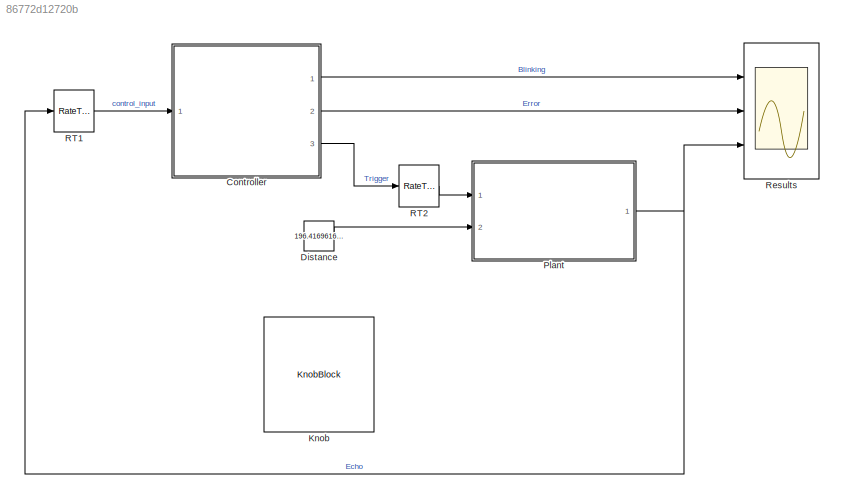
MODEL slx_86772d12720b
KIND model
CONFIG AbsTol = auto
CONFIG EnableMultiTasking = on
CONFIG FixedStep = auto
CONFIG MaxStep = auto
CONFIG MinStep = auto
CONFIG RelTol = 1e-3
CONFIG SampleTimeConstraint = Unconstrained
CONFIG SolverName = VariableStepAuto
CONFIG StartTime = 0.0
CONFIG StopTime = inf
BLOCK [ModelReference] Controller
  ModelNameDialog = feedback_control
  ModelReferenceVersion = 1.105
  Ports = [1, 3]
BLOCK [Constant] Distance
  OutDataTypeStr = double
  Value = 196.4169616699219
BLOCK [KnobBlock] Knob
  ScaleMax = 450
BLOCK [ModelReference] Plant
  ModelNameDialog = feedback_plant
  ModelReferenceVersion = 10.6
  Ports = [2, 1]
BLOCK [RateTransition] RT1
BLOCK [RateTransition] RT2
BLOCK [Scope] Results
  Floating = off
  NumInputPorts = 3
  Ports = [3]
  ScopeSpecificationString = Simulink.scopes.TimeScopeBlockCfg('CurrentConfiguration', extmgr.ConfigurationSet(extmgr.Configuration('Core','General UI',true),extmgr.Configuration('Core','Source UI',true),extmgr.Configuration('Sources','WiredSimulink',true,'DataLoggingSaveFormat','StructureWithTime','DataLoggingDecimation','1','DataLoggingDecimateData',true),extmgr.Configuration('Visuals','Time Domain',true,'SerializedDisplays...<+2947ch>
LINE Controller:1 -> Results:1
LINE Controller:2 -> Results:2
LINE Controller:3 -> RT2:1
LINE Distance:1 -> Plant:2
NET Plant:1 -> RT1:1, Results:3
LINE RT1:1 -> Controller:1
LINE RT2:1 -> Plant:1
note: NET lines group one-source signal fan-out (src -> all destinations, sorted); 1:1 wires keep LINE
CHART TestVector/switchCase_signal states=11 transitions=10
  STATE_LABEL 'EQ1\nen: flag=1;'
  STATE_LABEL 'EQ2\nen: flag=2;'
  STATE_LABEL 'EQ3\nen: flag=3;'
  STATE_LABEL 'EQ4\nen: flag=4;'
  STATE_LABEL 'EQ5\nen: flag=5;'
  STATE_LABEL 'enter_3\nen: flag=8\n'
  STATE_LABEL 'EQ8\nen: flag=6;'
  STATE_LABEL 'exit_2\nen: flag=9;'
  STATE_LABEL 'exit_1, exit_2 e exit_3\nservono per gestire la \ncoverage nel caso:\n"exit from on state"\nin tutti i tre casi di blinking'
  STATE_LABEL 'enter_1\nen: flag=7;\n'
  STATE_LABEL 'END\nen: flag=6;\n'
CHART TestVector/switchCase_error states=14 transitions=11
  STATE_LABEL 'EQ1\nen: error=0;'
  STATE_LABEL 'EQ2\nen: error=0;'
  STATE_LABEL 'EQ3\nen: error=0;'
  STATE_LABEL 'EQ4\nen: error=0;'
  STATE_LABEL 'EQ5\nen: error=0;'
  STATE_LABEL 'EQ6\nen: error=0;'
  STATE_LABEL 'devo considerare il tempo richiesto per calcolare il setnale di echo relativo a 401 cm(0.023258)'
  STATE_LABEL 'exit_1\nen: error=1;\n'
  STATE_LABEL 'Il totale in cui stiamo in questo stato è 1 secondo (0.4+0.023258+1-0.4-0.023258) + il tempo richiesto per calcolare il prossimo stato. In questo ultimo caso rimaniamo per altri 0.0058 nello stato 1 prima di accorgerci del nuovo valore e passare allo stato 0'
  STATE_LABEL 'exit_1, exit_2 e exit_3\nservono per gestire la \ncoverage nel caso:\n"exit from on state"\nin tutti i tre casi di blinking'
  STATE_LABEL 'exit_2\nen: error=0;'
  STATE_LABEL 'exit_3\nen: error=0\n'
  STATE_LABEL 'AAA\nerror=0;\n'
  STATE_LABEL 'END\nerror=0;\n'
CHART TestVector/Chart states=10 transitions=10
  STATE_LABEL 'EQ1\nen: flag=1;\n error=0;'
  STATE_LABEL 'EQ2\nen: flag=2;\n error=0;'
  STATE_LABEL 'EQ3\nen: flag=3;\n error=1;'
  STATE_LABEL 'EQ4\nen: flag=4;\n error=0;'
  STATE_LABEL 'EQ5\nen: flag=5;\n error=0;'
  STATE_LABEL 'EQ6\nen: flag=6;\n error=0;'
  STATE_LABEL 'cover1\nen: flag=2;\n error=0;'
  STATE_LABEL 'cover2\nen: flag=4;\n error=0;'
  STATE_LABEL 'cover3\nen: flag=3;\n error=0;'
  STATE_LABEL 'END'
